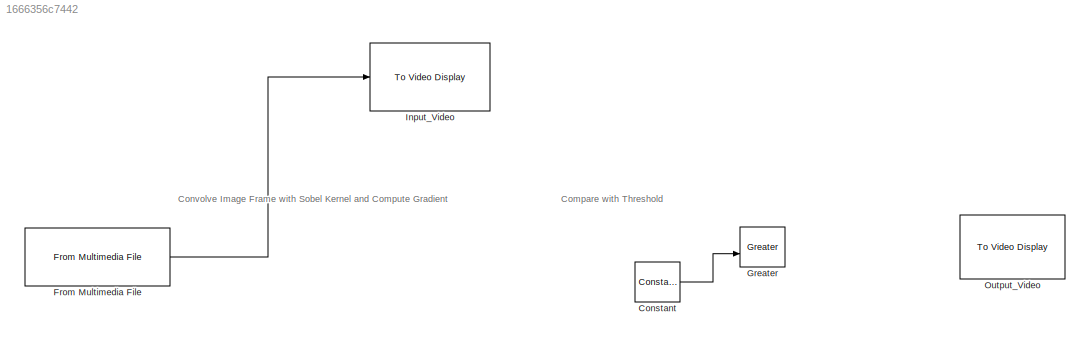
MODEL slx_1666356c7442
KIND model
CONFIG AbsTol = auto
CONFIG EnableMultiTasking = on
CONFIG FixedStep = auto
CONFIG MaxStep = auto
CONFIG MinStep = auto
CONFIG RelTol = 1e-3
CONFIG SampleTimeConstraint = Unconstrained
CONFIG SolverName = VariableStepAuto
CONFIG StartTime = 0.0
CONFIG StopTime = inf
BLOCK [Reference] Constant  REF=hlsBasic/Constant
  Description = Performs multiplication
  SourceBlock = hlsBasic/Constant
  SourceType = Constant
BLOCK [Reference] From Multimedia File  REF=dspvision/From Multimedia File
  SourceBlock = dspvision/From Multimedia File
  SourceType = From Multimedia File
BLOCK [Reference] Greater  REF=hlsBasic/Greater
  Description = Performs multiplication
  SourceBlock = hlsBasic/Greater
  SourceType = Greater
BLOCK [Reference] Input_Video  REF=visionsinks/To Video Display
  SourceBlock = visionsinks/To Video Display
  SourceType = To Video Display
BLOCK [Reference] Output_Video  REF=visionsinks/To Video Display
  SourceBlock = visionsinks/To Video Display
  SourceType = To Video Display
ANNOTATION (root): Compare with Threshold
ANNOTATION (root): Convolve Image Frame with Sobel Kernel and Compute Gradient
LINE Constant:1 -> Greater:2
LINE From Multimedia File:1 -> Input_Video:1
